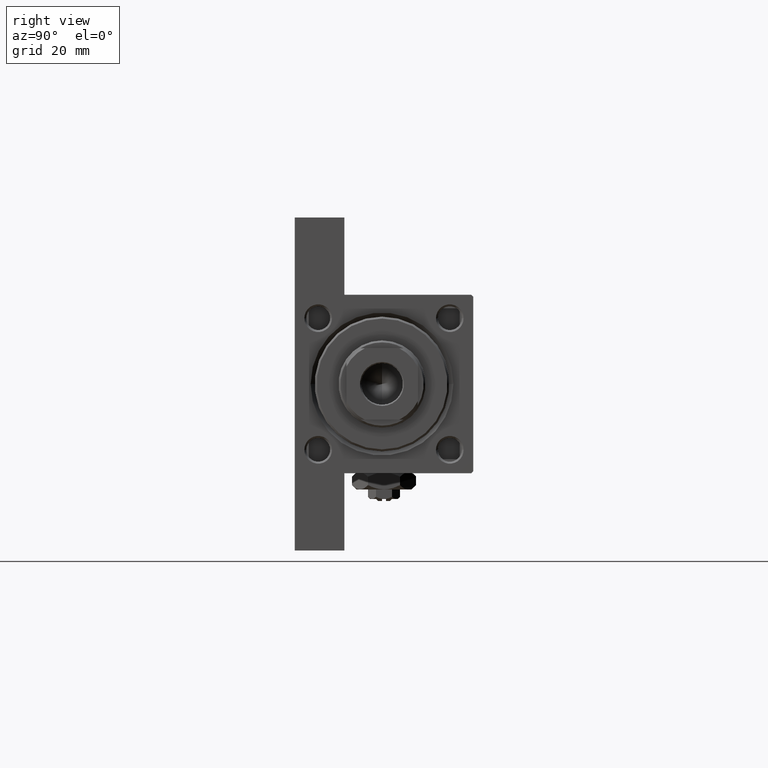
[diagram: clean part render]
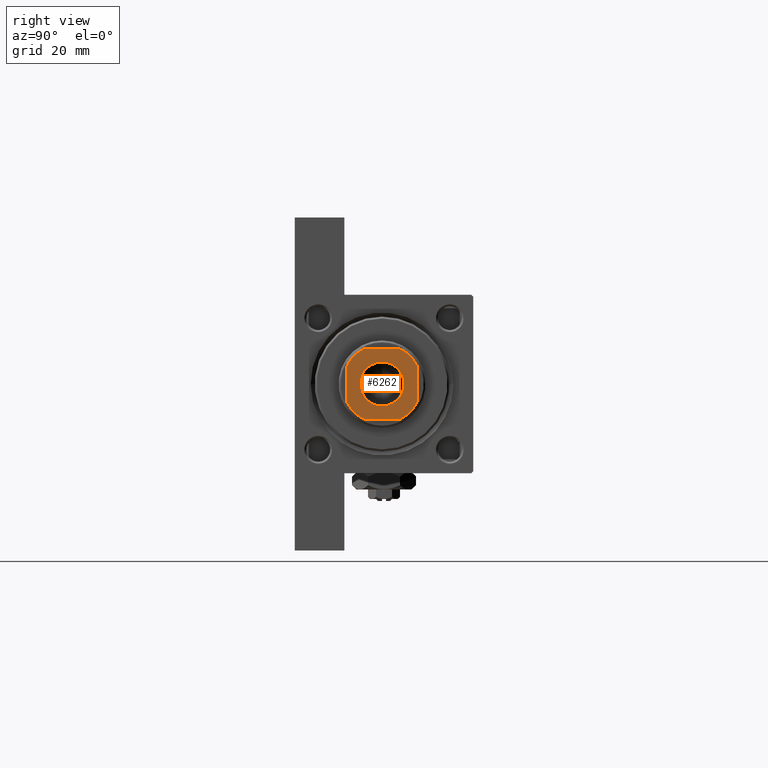
[diagram: same view with one face highlighted and labeled with its STEP entity id]
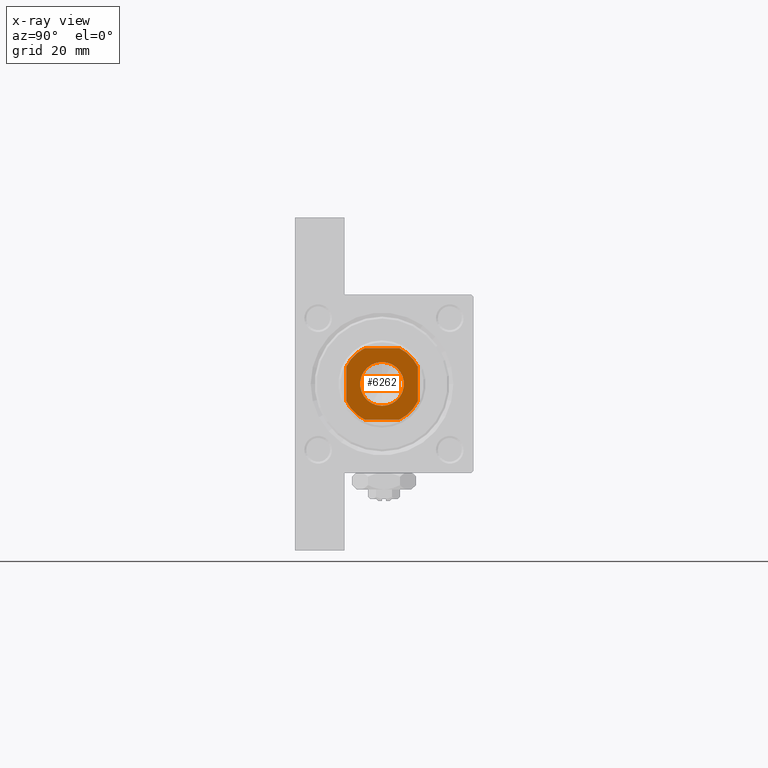
[diagram: x-ray of the same camera — body ghosted, the highlighted face saturated]
A machine part, right view. The second image highlights one B-rep face of the part: STEP entity #6262.
The next image is the same camera in x-ray: the body ghosted, the highlighted face saturated — about 0% of this face is hidden behind the body in this view.
In plain terms, the highlighted planar face has unit normal (1, 0, 0).
Its self-contained STEP definition (entity closure, byte-faithful):
#89 = DIRECTION ( 'NONE',  ( 1.000000000000000000, 0.000000000000000000, 0.000000000000000000 ) ) ;
#953 = CARTESIAN_POINT ( 'NONE',  ( -4.358898943540667759, -9.000000000000001776, 123.0000000000000000 ) ) ;
#2482 = CARTESIAN_POINT ( 'NONE',  ( 8.999999999999998224, -4.358898943540672200, 123.0000000000000000 ) ) ;
#2772 = DIRECTION ( 'NONE',  ( 1.000000000000000000, 0.000000000000000000, 0.000000000000000000 ) ) ;
#2783 = AXIS2_PLACEMENT_3D ( 'NONE', #41816, #34552, #89 ) ;
#2882 = LINE ( 'NONE', #18130, #22489 ) ;
#3025 = EDGE_CURVE ( 'NONE', #17642, #44052, #29928, .T. ) ;
#3369 = DIRECTION ( 'NONE',  ( 1.000000000000000000, 0.000000000000000000, 0.000000000000000000 ) ) ;
#4064 = EDGE_CURVE ( 'NONE', #18259, #17642, #41394, .T. ) ;
#4537 = CIRCLE ( 'NONE', #36432, 9.999999999999998224 ) ;
#4570 = ORIENTED_EDGE ( 'NONE', *, *, #20244, .T. ) ;
#5421 = DIRECTION ( 'NONE',  ( -0.000000000000000000, 0.000000000000000000, 1.000000000000000000 ) ) ;
#6072 = EDGE_CURVE ( 'NONE', #37560, #6266, #15701, .T. ) ;
#6085 = ORIENTED_EDGE ( 'NONE', *, *, #9693, .T. ) ;
#6262 = ADVANCED_FACE ( 'NONE', ( #40757, #47984 ), #44249, .T. ) ;
#6266 = VERTEX_POINT ( 'NONE', #18017 ) ;
#8032 = DIRECTION ( 'NONE',  ( -1.927470528863119049E-16, 1.000000000000000000, -0.000000000000000000 ) ) ;
#8039 = DIRECTION ( 'NONE',  ( 1.000000000000000000, 0.000000000000000000, 0.000000000000000000 ) ) ;
#8138 = CARTESIAN_POINT ( 'NONE',  ( -9.000000000000003553, 4.358898943540662430, 123.0000000000000000 ) ) ;
#8621 = ORIENTED_EDGE ( 'NONE', *, *, #6072, .T. ) ;
#8684 = DIRECTION ( 'NONE',  ( 1.000000000000000000, 0.000000000000000000, 0.000000000000000000 ) ) ;
#9693 = EDGE_CURVE ( 'NONE', #11505, #38120, #4537, .T. ) ;
#9841 = CARTESIAN_POINT ( 'NONE',  ( -9.000000000000003553, -4.358898943540665094, 123.0000000000000000 ) ) ;
#11308 = CARTESIAN_POINT ( 'NONE',  ( -5.550000000000013145, 6.796789735267826558E-16, 123.0000000000000000 ) ) ;
#11505 = VERTEX_POINT ( 'NONE', #43443 ) ;
#11697 = AXIS2_PLACEMENT_3D ( 'NONE', #21757, #36996, #2772 ) ;
#12058 = VERTEX_POINT ( 'NONE', #17660 ) ;
#12328 = EDGE_LOOP ( 'NONE', ( #48767, #8621 ) ) ;
#12422 = AXIS2_PLACEMENT_3D ( 'NONE', #35185, #19207, #38193 ) ;
#12518 = ORIENTED_EDGE ( 'NONE', *, *, #4064, .T. ) ;
#12994 = ORIENTED_EDGE ( 'NONE', *, *, #20620, .T. ) ;
#13383 = LINE ( 'NONE', #31864, #25101 ) ;
#14000 = VECTOR ( 'NONE', #21898, 1000.000000000000000 ) ;
#14292 = CIRCLE ( 'NONE', #23079, 5.550000000000013145 ) ;
#15200 = CARTESIAN_POINT ( 'NONE',  ( 0.000000000000000000, 0.000000000000000000, 123.0000000000000000 ) ) ;
#15701 = CIRCLE ( 'NONE', #2783, 5.550000000000013145 ) ;
#16528 = DIRECTION ( 'NONE',  ( 0.000000000000000000, -0.000000000000000000, -1.000000000000000000 ) ) ;
#17045 = EDGE_CURVE ( 'NONE', #12058, #18259, #33722, .T. ) ;
#17642 = VERTEX_POINT ( 'NONE', #9841 ) ;
#17660 = CARTESIAN_POINT ( 'NONE',  ( -4.358898943540671311, 8.999999999999998224, 123.0000000000000000 ) ) ;
#18017 = CARTESIAN_POINT ( 'NONE',  ( 5.550000000000013145, 0.000000000000000000, 123.0000000000000000 ) ) ;
#18130 = CARTESIAN_POINT ( 'NONE',  ( -9.000000000000003553, 8.999999999999998224, 123.0000000000000000 ) ) ;
#18259 = VERTEX_POINT ( 'NONE', #8138 ) ;
#18363 = VERTEX_POINT ( 'NONE', #26596 ) ;
#19207 = DIRECTION ( 'NONE',  ( -0.000000000000000000, 0.000000000000000000, 1.000000000000000000 ) ) ;
#20226 = EDGE_LOOP ( 'NONE', ( #4570, #23187, #38542, #47283, #12518, #22887, #12994, #6085 ) ) ;
#20244 = EDGE_CURVE ( 'NONE', #38120, #18363, #41760, .T. ) ;
#20620 = EDGE_CURVE ( 'NONE', #44052, #11505, #13383, .T. ) ;
#21106 = DIRECTION ( 'NONE',  ( 1.000000000000000000, 0.000000000000000000, 0.000000000000000000 ) ) ;
#21757 = CARTESIAN_POINT ( 'NONE',  ( 0.000000000000000000, 0.000000000000000000, 123.0000000000000000 ) ) ;
#21898 = DIRECTION ( 'NONE',  ( 9.637352644315595243E-17, -1.000000000000000000, 0.000000000000000000 ) ) ;
#22489 = VECTOR ( 'NONE', #34859, 1000.000000000000000 ) ;
#22887 = ORIENTED_EDGE ( 'NONE', *, *, #3025, .T. ) ;
#23079 = AXIS2_PLACEMENT_3D ( 'NONE', #42260, #16528, #8039 ) ;
#23187 = ORIENTED_EDGE ( 'NONE', *, *, #27869, .T. ) ;
#23364 = AXIS2_PLACEMENT_3D ( 'NONE', #15200, #5421, #8684 ) ;
#25101 = VECTOR ( 'NONE', #21106, 1000.000000000000000 ) ;
#26498 = CARTESIAN_POINT ( 'NONE',  ( 8.999999999999996447, 8.999999999999998224, 123.0000000000000000 ) ) ;
#26596 = CARTESIAN_POINT ( 'NONE',  ( 8.999999999999998224, 4.358898943540600257, 123.0000000000000000 ) ) ;
#27869 = EDGE_CURVE ( 'NONE', #18363, #35475, #38923, .T. ) ;
#29928 = CIRCLE ( 'NONE', #12422, 9.999999999999998224 ) ;
#30147 = CARTESIAN_POINT ( 'NONE',  ( -9.000000000000003553, 8.999999999999998224, 123.0000000000000000 ) ) ;
#31456 = VECTOR ( 'NONE', #8032, 1000.000000000000000 ) ;
#31864 = CARTESIAN_POINT ( 'NONE',  ( -9.000000000000001776, -9.000000000000001776, 123.0000000000000000 ) ) ;
#33722 = CIRCLE ( 'NONE', #23364, 9.999999999999996447 ) ;
#34552 = DIRECTION ( 'NONE',  ( 0.000000000000000000, -0.000000000000000000, -1.000000000000000000 ) ) ;
#34859 = DIRECTION ( 'NONE',  ( -1.000000000000000000, -0.000000000000000000, -0.000000000000000000 ) ) ;
#35185 = CARTESIAN_POINT ( 'NONE',  ( 0.000000000000000000, 0.000000000000000000, 123.0000000000000000 ) ) ;
#35259 = EDGE_CURVE ( 'NONE', #6266, #37560, #14292, .T. ) ;
#35475 = VERTEX_POINT ( 'NONE', #44925 ) ;
#36432 = AXIS2_PLACEMENT_3D ( 'NONE', #45572, #41599, #3369 ) ;
#36500 = CARTESIAN_POINT ( 'NONE',  ( 0.000000000000000000, 0.000000000000000000, 123.0000000000000000 ) ) ;
#36971 = DIRECTION ( 'NONE',  ( 1.000000000000000000, 0.000000000000000000, 0.000000000000000000 ) ) ;
#36996 = DIRECTION ( 'NONE',  ( -0.000000000000000000, 0.000000000000000000, 1.000000000000000000 ) ) ;
#37560 = VERTEX_POINT ( 'NONE', #11308 ) ;
#38120 = VERTEX_POINT ( 'NONE', #2482 ) ;
#38193 = DIRECTION ( 'NONE',  ( 1.000000000000000000, 0.000000000000000000, 0.000000000000000000 ) ) ;
#38542 = ORIENTED_EDGE ( 'NONE', *, *, #41468, .T. ) ;
#38923 = CIRCLE ( 'NONE', #40485, 9.999999999999966249 ) ;
#40485 = AXIS2_PLACEMENT_3D ( 'NONE', #36500, #41487, #36971 ) ;
#40757 = FACE_BOUND ( 'NONE', #12328, .T. ) ;
#41394 = LINE ( 'NONE', #30147, #14000 ) ;
#41468 = EDGE_CURVE ( 'NONE', #35475, #12058, #2882, .T. ) ;
#41487 = DIRECTION ( 'NONE',  ( -0.000000000000000000, 0.000000000000000000, 1.000000000000000000 ) ) ;
#41599 = DIRECTION ( 'NONE',  ( -0.000000000000000000, 0.000000000000000000, 1.000000000000000000 ) ) ;
#41760 = LINE ( 'NONE', #26498, #31456 ) ;
#41816 = CARTESIAN_POINT ( 'NONE',  ( 0.000000000000000000, 0.000000000000000000, 123.0000000000000000 ) ) ;
#42260 = CARTESIAN_POINT ( 'NONE',  ( 0.000000000000000000, 0.000000000000000000, 123.0000000000000000 ) ) ;
#43443 = CARTESIAN_POINT ( 'NONE',  ( 4.358898943540667759, -9.000000000000001776, 123.0000000000000000 ) ) ;
#44052 = VERTEX_POINT ( 'NONE', #953 ) ;
#44249 = PLANE ( 'NONE',  #11697 ) ;
#44925 = CARTESIAN_POINT ( 'NONE',  ( 4.358898943540597593, 8.999999999999998224, 123.0000000000000000 ) ) ;
#45572 = CARTESIAN_POINT ( 'NONE',  ( 0.000000000000000000, 0.000000000000000000, 123.0000000000000000 ) ) ;
#47283 = ORIENTED_EDGE ( 'NONE', *, *, #17045, .T. ) ;
#47984 = FACE_OUTER_BOUND ( 'NONE', #20226, .T. ) ;
#48767 = ORIENTED_EDGE ( 'NONE', *, *, #35259, .T. ) ;